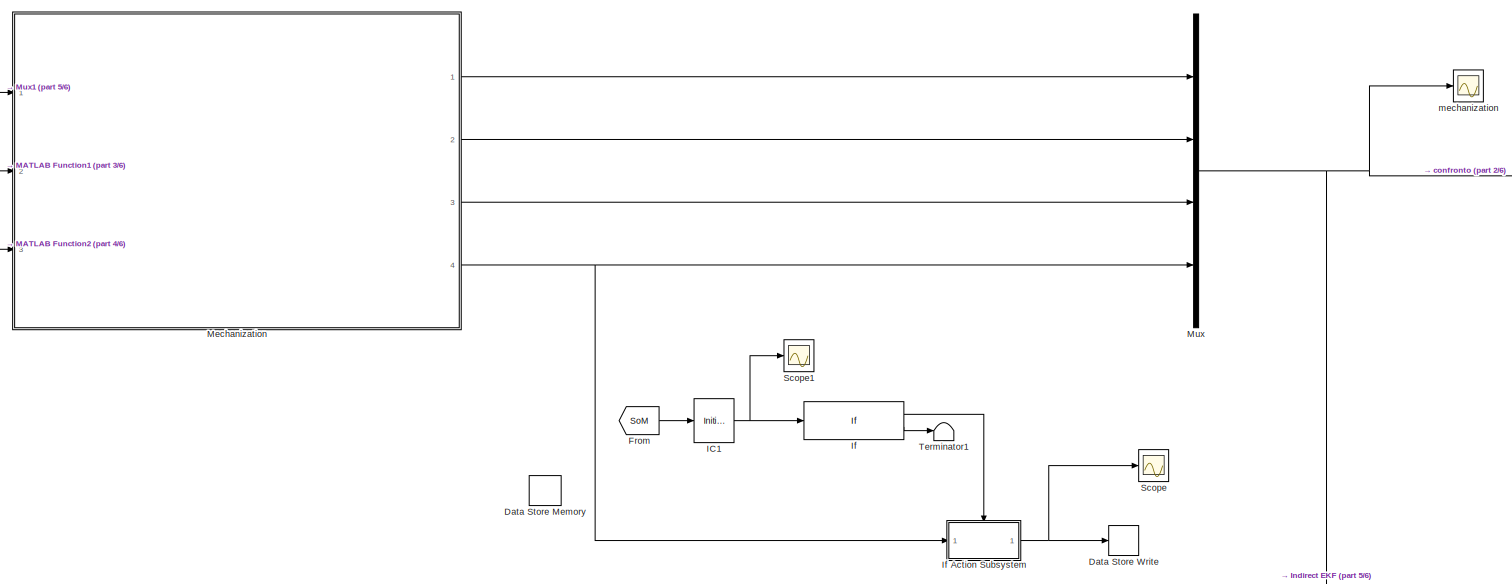
[diagram: root canvas - part 1/6, top right region]
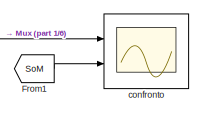
[diagram: root canvas - part 2/6, top right region]
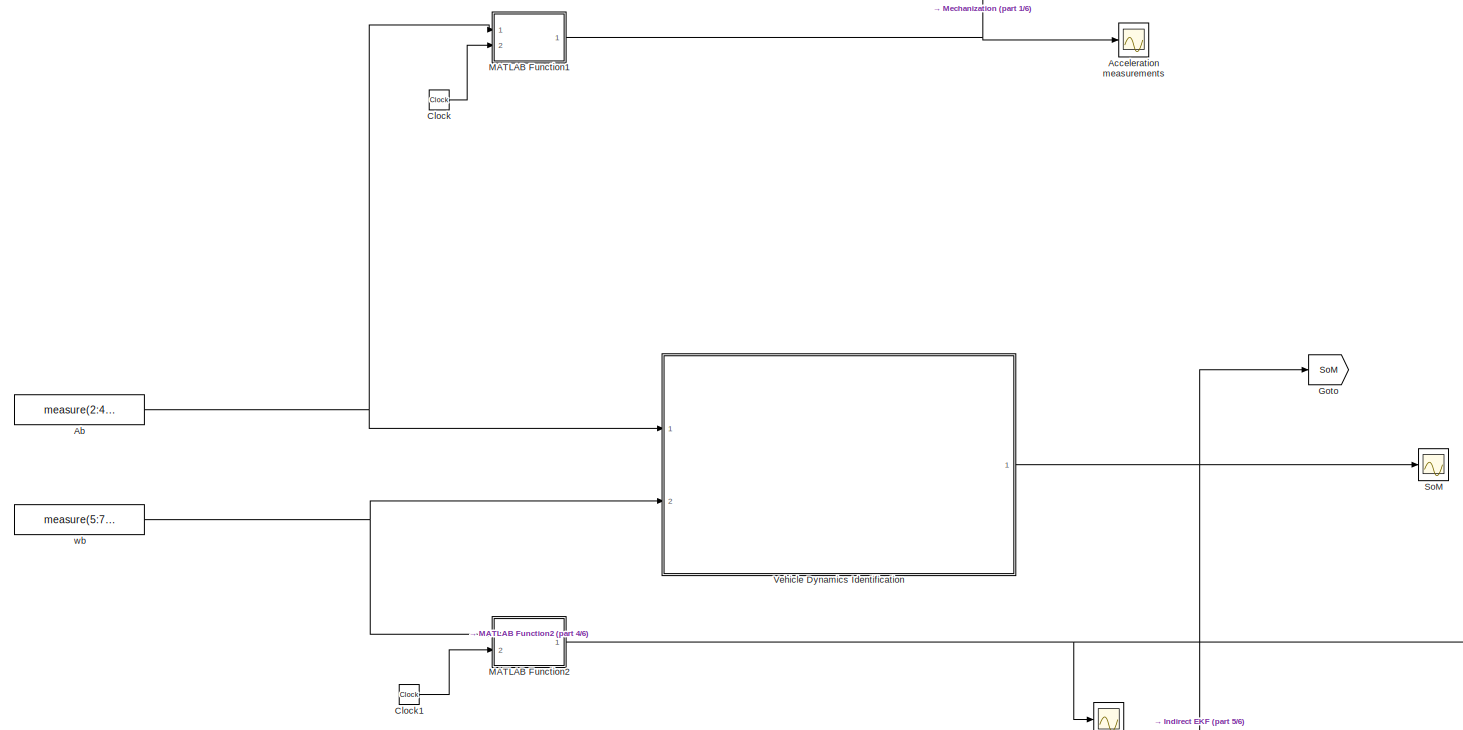
[diagram: root canvas - part 3/6, middle left region]
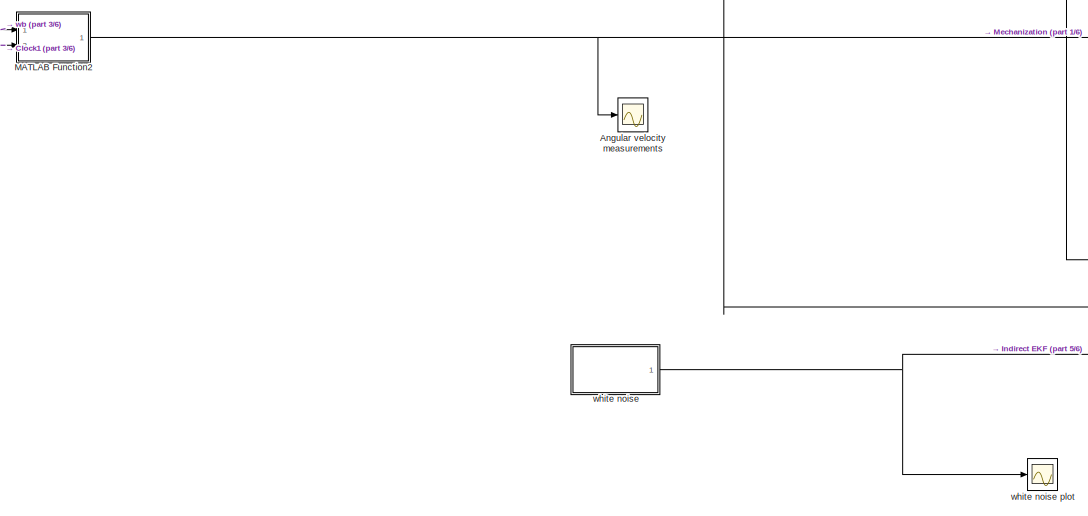
[diagram: root canvas - part 4/6, bottom left region]
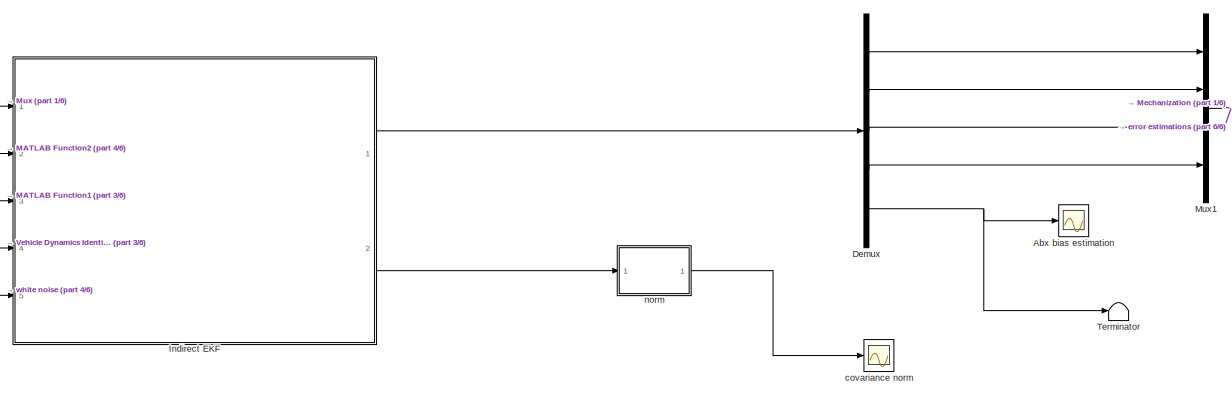
[diagram: root canvas - part 5/6, bottom right region]
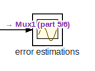
[diagram: root canvas - part 6/6, bottom right region]
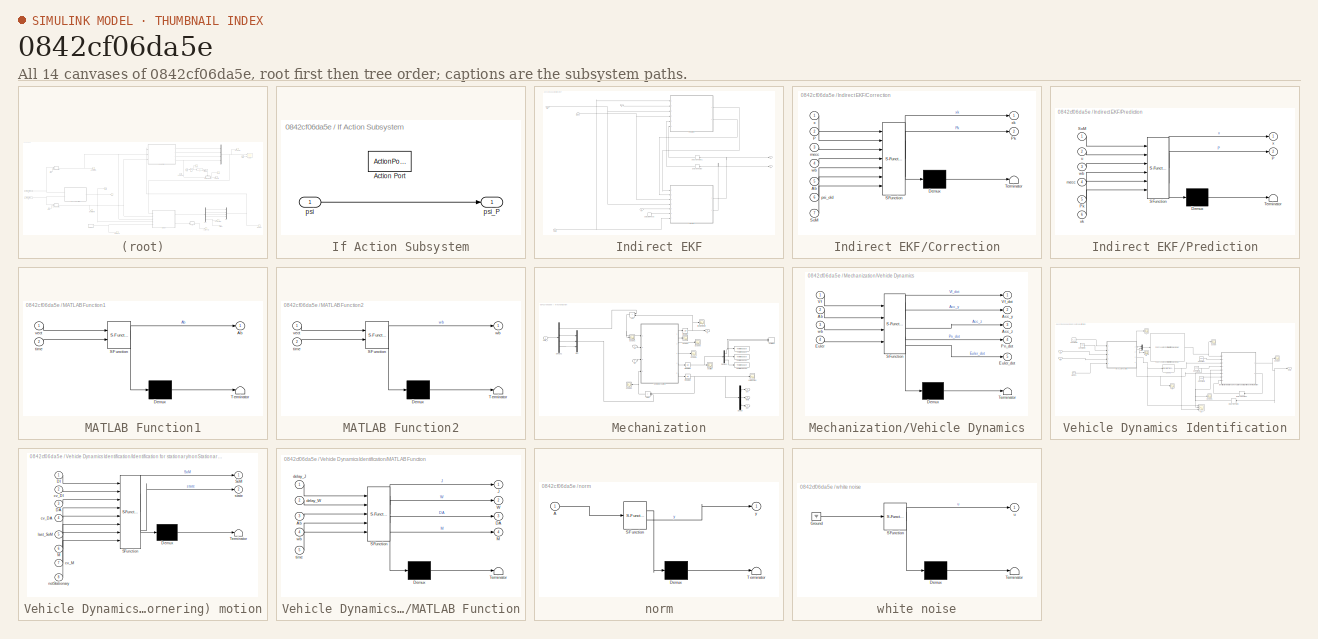
[diagram: thumbnail index - all 14 canvases of the model, root first then tree order]
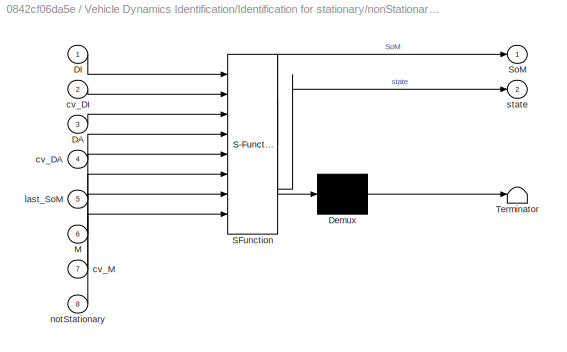
MODEL slx_0842cf06da5e
KIND model
CONFIG AbsTol = auto
CONFIG EnableMultiTasking = off
CONFIG FixedStep = 1e-2
CONFIG MaxStep = auto
CONFIG MinStep = auto
CONFIG RelTol = 1e-3
CONFIG SampleTimeConstraint = Unconstrained
CONFIG SolverName = ode4
CONFIG StartTime = 0.0
CONFIG StopTime = 200
BLOCK [Constant] Ab
  Value = measure(2:4,:)
BLOCK [Scope] Abx bias estimation
  Floating = off
  NumInputPorts = 1
  Ports = [1]
  ScopeSpecificationString = Simulink.scopes.TimeScopeBlockCfg('CurrentConfiguration', extmgr.ConfigurationSet(extmgr.Configuration('Core','General UI',true),extmgr.Configuration('Core','Source UI',true),extmgr.Configuration('Sources','WiredSimulink',true,'DataLoggingVariableName','ScopeData7'),extmgr.Configuration('Visuals','Time Domain',true,'SerializedDisplays',{struct('MinYLimReal','-1.00000','MaxYLimReal','1.00000','YLab...<+1366ch>
BLOCK [Scope] Acceleration measurements
  Floating = off
  NumInputPorts = 1
  Ports = [1]
  ScopeSpecificationString = Simulink.scopes.TimeScopeBlockCfg('CurrentConfiguration', extmgr.ConfigurationSet(extmgr.Configuration('Core','General UI',true),extmgr.Configuration('Core','Source UI',true),extmgr.Configuration('Sources','WiredSimulink',true,'DataLoggingVariableName','ScopeData9'),extmgr.Configuration('Visuals','Time Domain',true,'SerializedDisplays',{struct('MinYLimReal','-12.26886','MaxYLimReal','7.2905','YLab...<+1474ch>
BLOCK [Scope] Angular velocity measurements
  Floating = off
  NumInputPorts = 1
  Ports = [1]
  ScopeSpecificationString = Simulink.scopes.TimeScopeBlockCfg('CurrentConfiguration', extmgr.ConfigurationSet(extmgr.Configuration('Core','General UI',true),extmgr.Configuration('Core','Source UI',true),extmgr.Configuration('Sources','WiredSimulink',true,'DataLoggingVariableName','ScopeData10'),extmgr.Configuration('Visuals','Time Domain',true,'SerializedDisplays',{struct('MinYLimReal','-0.61104','MaxYLimReal','0.61576','YLa...<+1445ch>
BLOCK [Clock] Clock
BLOCK [Clock] Clock1
BLOCK [DataStoreMemory] Data Store Memory
  DataStoreName = psi_P
  InitialValue = pi/2
  ReadBeforeWriteMsg = warning
  ShowAdditionalParam = off
  WriteAfterReadMsg = warning
  WriteAfterWriteMsg = warning
BLOCK [DataStoreWrite] Data Store Write
  DataStoreName = psi_P
  IndexOptions = Index vector (dialog)
  Indices = 1
  OutputSizes = 1
  Ports = [1]
BLOCK [Demux] Demux
  Outputs = 5
  Ports = [1, 5]
BLOCK [From] From
  GotoTag = SoM
BLOCK [From] From1
  GotoTag = SoM
BLOCK [Goto] Goto
  GotoTag = SoM
BLOCK [InitialCondition] IC1
BLOCK [If] If
  IfExpression = u1
  Ports = [1, 2]
BLOCK [SubSystem] If Action Subsystem
  Ports = [1, 1, 0, 0, 0, 0, 0, 1]
  RequestExecContextInheritance = off
  TreatAsAtomicUnit = on
BLOCK [ActionPort] If Action Subsystem/Action Port
  ActionPortLabel = if(u1)
BLOCK [Inport] If Action Subsystem/psi
BLOCK [Outport] If Action Subsystem/psi_P
BLOCK [SubSystem] Indirect EKF
  Ports = [5, 2]
  RequestExecContextInheritance = off
BLOCK [Inport] Indirect EKF/Ab
  Port = 3
BLOCK [SubSystem] Indirect EKF/Correction
  ErrorFcn = Stateflow.Translate.translate
  PermitHierarchicalResolution = ExplicitOnly
  Ports = [7, 2]
  RequestExecContextInheritance = off
  SFBlockType = MATLAB Function
  TreatAsAtomicUnit = on
BLOCK [Demux] Indirect EKF/Correction/ Demux 
  Outputs = 1
  Ports = [1, 1]
BLOCK [S-Function] Indirect EKF/Correction/ SFunction 
  EnableBusSupport = on
  FunctionName = sf_sfun
  PortCounts = [7 3]
  Ports = [7, 3]
  SFcnIsStateOwnerBlock = off
  SFunctionDeploymentMode = off
  Tag = Stateflow S-Function 7
BLOCK [Terminator] Indirect EKF/Correction/ Terminator 
BLOCK [Inport] Indirect EKF/Correction/Ab
  Port = 5
BLOCK [Inport] Indirect EKF/Correction/P
  Port = 2
BLOCK [Outport] Indirect EKF/Correction/Pk
  Port = 2
BLOCK [Inport] Indirect EKF/Correction/SoM
  Port = 7
BLOCK [Inport] Indirect EKF/Correction/mecc
  Port = 3
BLOCK [Inport] Indirect EKF/Correction/psi_old
  Port = 6
BLOCK [Inport] Indirect EKF/Correction/wb
  Port = 4
BLOCK [Inport] Indirect EKF/Correction/x
BLOCK [Outport] Indirect EKF/Correction/xk
BLOCK [DataStoreRead] Indirect EKF/Data Store Read
  DataStoreName = psi_P
  IndexOptions = Index vector (dialog)
  Indices = 1
  OutputSizes = 1
  Ports = [0, 1]
BLOCK [Delay] Indirect EKF/Delay One Step
  DelayLength = 1
  InitialCondition = eye(5)
  InputPortMap = u0
  NameLocation = top
  Ports = [1, 1]
BLOCK [Delay] Indirect EKF/Delay One Step1
  DelayLength = 1
  InitialCondition = [0 0 0 0 0]'
  InputPortMap = u0
  NameLocation = top
  Ports = [1, 1]
BLOCK [Outport] Indirect EKF/P
  Port = 2
BLOCK [SubSystem] Indirect EKF/Prediction
  ErrorFcn = Stateflow.Translate.translate
  PermitHierarchicalResolution = ExplicitOnly
  Ports = [6, 2]
  RequestExecContextInheritance = off
  SFBlockType = MATLAB Function
  TreatAsAtomicUnit = on
BLOCK [Demux] Indirect EKF/Prediction/ Demux 
  Outputs = 1
  Ports = [1, 1]
BLOCK [S-Function] Indirect EKF/Prediction/ SFunction 
  EnableBusSupport = on
  FunctionName = sf_sfun
  PortCounts = [6 3]
  Ports = [6, 3]
  SFcnIsStateOwnerBlock = off
  SFunctionDeploymentMode = off
  Tag = Stateflow S-Function 6
BLOCK [Terminator] Indirect EKF/Prediction/ Terminator 
BLOCK [Outport] Indirect EKF/Prediction/P
  Port = 2
BLOCK [Inport] Indirect EKF/Prediction/Pk
  Port = 5
BLOCK [Inport] Indirect EKF/Prediction/SoM
BLOCK [Inport] Indirect EKF/Prediction/mecc
  Port = 4
BLOCK [Inport] Indirect EKF/Prediction/u
  Port = 2
BLOCK [Inport] Indirect EKF/Prediction/wb
  Port = 3
BLOCK [Outport] Indirect EKF/Prediction/x
BLOCK [Inport] Indirect EKF/Prediction/xk
  Port = 6
BLOCK [Inport] Indirect EKF/SoM
  Port = 4
BLOCK [Inport] Indirect EKF/mecc
BLOCK [Inport] Indirect EKF/u
  Port = 5
BLOCK [Inport] Indirect EKF/wb
  Port = 2
BLOCK [Outport] Indirect EKF/x
BLOCK [SubSystem] MATLAB Function1
  ErrorFcn = Stateflow.Translate.translate
  PermitHierarchicalResolution = ExplicitOnly
  Ports = [2, 1]
  RequestExecContextInheritance = off
  SFBlockType = MATLAB Function
  TreatAsAtomicUnit = on
BLOCK [Demux] MATLAB Function1/ Demux 
  Outputs = 1
  Ports = [1, 1]
BLOCK [S-Function] MATLAB Function1/ SFunction 
  EnableBusSupport = on
  FunctionName = sf_sfun
  PortCounts = [2 2]
  Ports = [2, 2]
  SFcnIsStateOwnerBlock = off
  SFunctionDeploymentMode = off
  Tag = Stateflow S-Function 11
BLOCK [Terminator] MATLAB Function1/ Terminator 
BLOCK [Outport] MATLAB Function1/Ab
BLOCK [Inport] MATLAB Function1/time
  Port = 2
BLOCK [Inport] MATLAB Function1/vect
BLOCK [SubSystem] MATLAB Function2
  ErrorFcn = Stateflow.Translate.translate
  PermitHierarchicalResolution = ExplicitOnly
  Ports = [2, 1]
  RequestExecContextInheritance = off
  SFBlockType = MATLAB Function
  TreatAsAtomicUnit = on
BLOCK [Demux] MATLAB Function2/ Demux 
  Outputs = 1
  Ports = [1, 1]
BLOCK [S-Function] MATLAB Function2/ SFunction 
  EnableBusSupport = on
  FunctionName = sf_sfun
  PortCounts = [2 2]
  Ports = [2, 2]
  SFcnIsStateOwnerBlock = off
  SFunctionDeploymentMode = off
  Tag = Stateflow S-Function 12
BLOCK [Terminator] MATLAB Function2/ Terminator 
BLOCK [Inport] MATLAB Function2/time
  Port = 2
BLOCK [Inport] MATLAB Function2/vect
BLOCK [Outport] MATLAB Function2/wb
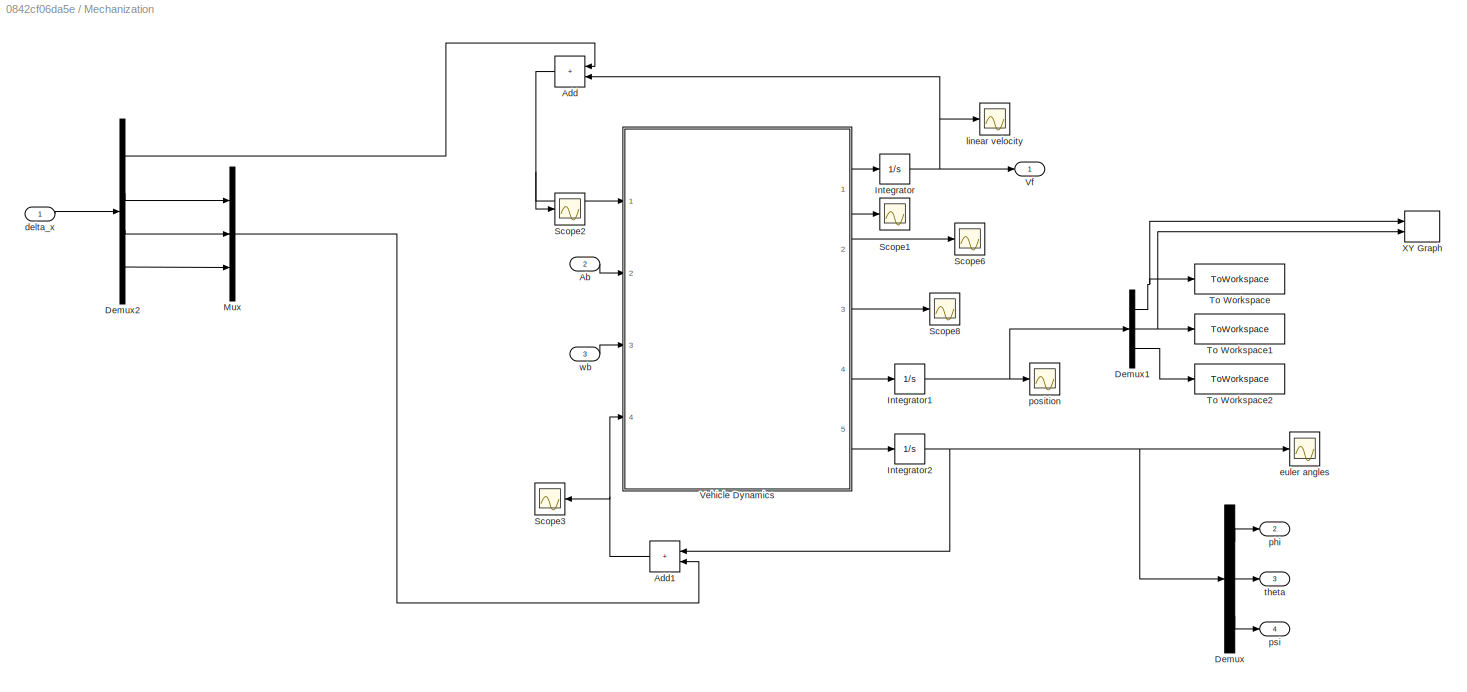
BLOCK [SubSystem] Mechanization
  Ports = [3, 4]
  RequestExecContextInheritance = off
BLOCK [Inport] Mechanization/Ab
  Port = 2
BLOCK [Sum] Mechanization/Add
  IconShape = rectangular
  NameLocation = top
  Ports = [2, 1]
BLOCK [Sum] Mechanization/Add1
  IconShape = rectangular
  NameLocation = top
  Ports = [2, 1]
BLOCK [Demux] Mechanization/Demux
  Outputs = 3
  Ports = [1, 3]
BLOCK [Demux] Mechanization/Demux1
  Outputs = 3
  Ports = [1, 3]
BLOCK [Demux] Mechanization/Demux2
  Ports = [1, 4]
BLOCK [Integrator] Mechanization/Integrator
  Ports = [1, 1]
BLOCK [Integrator] Mechanization/Integrator1
  InitialCondition = [0 0 0]'
  Ports = [1, 1]
BLOCK [Integrator] Mechanization/Integrator2
  InitialCondition = [0 0 pi/2]'
  Ports = [1, 1]
BLOCK [Mux] Mechanization/Mux
  DisplayOption = bar
  Inputs = 3
  Ports = [3, 1]
BLOCK [Scope] Mechanization/Scope1
  Floating = off
  NumInputPorts = 1
  Ports = [1]
  ScopeSpecificationString = Simulink.scopes.TimeScopeBlockCfg('CurrentConfiguration', extmgr.ConfigurationSet(extmgr.Configuration('Core','General UI',true),extmgr.Configuration('Core','Source UI',true),extmgr.Configuration('Sources','WiredSimulink',true,'DataLoggingVariableName','ScopeData1'),extmgr.Configuration('Visuals','Time Domain',true,'SerializedDisplays',{struct('MinYLimReal','-6.30754','MaxYLimReal','11.3619','YLab...<+1442ch>
BLOCK [Scope] Mechanization/Scope2
  Floating = off
  NumInputPorts = 1
  Ports = [1]
  ScopeSpecificationString = Simulink.scopes.TimeScopeBlockCfg('CurrentConfiguration', extmgr.ConfigurationSet(extmgr.Configuration('Core','General UI',true),extmgr.Configuration('Core','Source UI',true),extmgr.Configuration('Sources','WiredSimulink',true,'DataLoggingVariableName','ScopeData1'),extmgr.Configuration('Visuals','Time Domain',true,'SerializedDisplays',{struct('MinYLimReal','-24.69047','MaxYLimReal','20.43302','YL...<+1399ch>
BLOCK [Scope] Mechanization/Scope3
  Floating = off
  NumInputPorts = 1
  Ports = [1]
  ScopeSpecificationString = Simulink.scopes.TimeScopeBlockCfg('CurrentConfiguration', extmgr.ConfigurationSet(extmgr.Configuration('Core','General UI',true),extmgr.Configuration('Core','Source UI',true),extmgr.Configuration('Sources','WiredSimulink',true,'DataLoggingVariableName','ScopeData2'),extmgr.Configuration('Visuals','Time Domain',true,'SerializedDisplays',{struct('MinYLimReal','-0.34071','MaxYLimReal','1.78392','YLab...<+1383ch>
BLOCK [Scope] Mechanization/Scope6
  Floating = off
  NumInputPorts = 1
  Ports = [1]
  ScopeSpecificationString = Simulink.scopes.TimeScopeBlockCfg('CurrentConfiguration', extmgr.ConfigurationSet(extmgr.Configuration('Core','General UI',true),extmgr.Configuration('Core','Source UI',true),extmgr.Configuration('Sources','WiredSimulink',true,'DataLoggingVariableName','ScopeData3'),extmgr.Configuration('Visuals','Time Domain',true,'SerializedDisplays',{struct('MinYLimReal','-4.60764','MaxYLimReal','2.53127','YLab...<+1381ch>
BLOCK [Scope] Mechanization/Scope8
  Floating = off
  NumInputPorts = 1
  Ports = [1]
  ScopeSpecificationString = Simulink.scopes.TimeScopeBlockCfg('CurrentConfiguration', extmgr.ConfigurationSet(extmgr.Configuration('Core','General UI',true),extmgr.Configuration('Core','Source UI',true),extmgr.Configuration('Sources','WiredSimulink',true,'DataLoggingVariableName','ScopeData4'),extmgr.Configuration('Visuals','Time Domain',true,'SerializedDisplays',{struct('MinYLimReal','0.18308','MaxYLimReal','0.74153','YLabe...<+1379ch>
BLOCK [ToWorkspace] Mechanization/To Workspace
  FixptAsFi = on
  MaxDataPoints = inf
  Ports = [1]
  SampleTime = -1
  SaveFormat = Structure
  VariableName = x
BLOCK [ToWorkspace] Mechanization/To Workspace1
  FixptAsFi = on
  MaxDataPoints = inf
  Ports = [1]
  SampleTime = -1
  SaveFormat = Structure
  VariableName = y
BLOCK [ToWorkspace] Mechanization/To Workspace2
  FixptAsFi = on
  MaxDataPoints = inf
  Ports = [1]
  SampleTime = -1
  SaveFormat = Structure
  VariableName = z
BLOCK [SubSystem] Mechanization/Vehicle Dynamics
  ErrorFcn = Stateflow.Translate.translate
  PermitHierarchicalResolution = ExplicitOnly
  Ports = [4, 5]
  RequestExecContextInheritance = off
  SFBlockType = MATLAB Function
  TreatAsAtomicUnit = on
BLOCK [Demux] Mechanization/Vehicle Dynamics/ Demux 
  Outputs = 1
  Ports = [1, 1]
BLOCK [S-Function] Mechanization/Vehicle Dynamics/ SFunction 
  EnableBusSupport = on
  FunctionName = sf_sfun
  PortCounts = [4 6]
  Ports = [4, 6]
  SFcnIsStateOwnerBlock = off
  SFunctionDeploymentMode = off
  Tag = Stateflow S-Function 14
BLOCK [Terminator] Mechanization/Vehicle Dynamics/ Terminator 
BLOCK [Inport] Mechanization/Vehicle Dynamics/Ab
  Port = 2
BLOCK [Outport] Mechanization/Vehicle Dynamics/Acc_y
  Port = 2
BLOCK [Outport] Mechanization/Vehicle Dynamics/Acc_z
  Port = 3
BLOCK [Inport] Mechanization/Vehicle Dynamics/Euler
  Port = 4
BLOCK [Outport] Mechanization/Vehicle Dynamics/Euler_dot
  Port = 5
BLOCK [Outport] Mechanization/Vehicle Dynamics/Pn_dot
  Port = 4
BLOCK [Inport] Mechanization/Vehicle Dynamics/Vf
BLOCK [Outport] Mechanization/Vehicle Dynamics/Vf_dot
BLOCK [Inport] Mechanization/Vehicle Dynamics/wb
  Port = 3
BLOCK [Outport] Mechanization/Vf
BLOCK [Record] Mechanization/XY Graph
  CompatibilityTag = XY
  FileSettingsInternal = {"entries":[{"content":{"excelSettings":{"content":{},"type":"Streamout.ExcelSettings"}},"type":"Streamout.FileSettingStorage","uuid":"3c158775-b6e3-428c-9659-72c20ea76644"}],"packageUris":["http://schema.mathworks.com/mf0/streamout_blocks/R2020a"],"version":"1.0"}
  Layout = [1 1]
  Ports = [2]
  SignalsInternal = {"entries":[{"content":{"signals":[{"content":{"blockPath":["Fuzzy_and_EKF_tightly/Mechanization/XY Graph"],"channel":[],"dimensions":[1,1],"domain":"Fuzzy_and_EKF_tightly/Mechanization/XY Graph","lineColor":"#edb120","plots":[],"port":1,"sid":[""],"signalID":16325,"signalName":"Demux1:1"},"type":"RecordBlkView.Signal","uuid":"bfe6afe1-6902-4355-a286-55c02540e738"},{"content":{"blockPath":["Fuzzy_...<+477ch>
  VisualizationBindings = {"xyplotplugin":{"info":[{"series":[],"subplotID":1}]}}
BLOCK [Inport] Mechanization/delta_x
BLOCK [Scope] Mechanization/euler angles
  Floating = off
  NumInputPorts = 1
  Ports = [1]
  ScopeSpecificationString = Simulink.scopes.TimeScopeBlockCfg('CurrentConfiguration', extmgr.ConfigurationSet(extmgr.Configuration('Core','General UI',true),extmgr.Configuration('Core','Source UI',true),extmgr.Configuration('Sources','WiredSimulink',true,'DataLoggingVariableName','ScopeData5'),extmgr.Configuration('Visuals','Time Domain',true,'SerializedDisplays',{struct('MinYLimReal','-0.29938','MaxYLimReal','1.77991','YLab...<+1458ch>
BLOCK [Scope] Mechanization/linear velocity
  Floating = off
  NumInputPorts = 1
  Ports = [1]
  ScopeSpecificationString = Simulink.scopes.TimeScopeBlockCfg('CurrentConfiguration', extmgr.ConfigurationSet(extmgr.Configuration('Core','General UI',true),extmgr.Configuration('Core','Source UI',true),extmgr.Configuration('Sources','WiredSimulink',true,'DataLoggingVariableName','ScopeData1'),extmgr.Configuration('Visuals','Time Domain',true,'SerializedDisplays',{struct('MinYLimReal','-43.04124','MaxYLimReal','13.09449','YL...<+1451ch>
BLOCK [Outport] Mechanization/phi
  Port = 2
BLOCK [Scope] Mechanization/position
  Floating = off
  NumInputPorts = 1
  Ports = [1]
  ScopeSpecificationString = Simulink.scopes.TimeScopeBlockCfg('CurrentConfiguration', extmgr.ConfigurationSet(extmgr.Configuration('Core','General UI',true),extmgr.Configuration('Core','Source UI',true),extmgr.Configuration('Sources','WiredSimulink',true,'DataLoggingVariableName','ScopeData2'),extmgr.Configuration('Visuals','Time Domain',true,'SerializedDisplays',{struct('MinYLimReal','-78.58201','MaxYLimReal','30.11731','YL...<+1466ch>
BLOCK [Outport] Mechanization/psi
  Port = 4
BLOCK [Outport] Mechanization/theta
  Port = 3
BLOCK [Inport] Mechanization/wb
  Port = 3
BLOCK [Mux] Mux
  DisplayOption = bar
  Ports = [4, 1]
BLOCK [Mux] Mux1
  DisplayOption = bar
  Ports = [4, 1]
BLOCK [Scope] Scope
  Floating = off
  NumInputPorts = 1
  Ports = [1]
  ScopeSpecificationString = Simulink.scopes.TimeScopeBlockCfg('CurrentConfiguration', extmgr.ConfigurationSet(extmgr.Configuration('Core','General UI',true),extmgr.Configuration('Core','Source UI',true),extmgr.Configuration('Sources','WiredSimulink',true,'DataLoggingVariableName','ScopeData2'),extmgr.Configuration('Visuals','Time Domain',true,'SerializedDisplays',{struct('MinYLimReal','-0.19648','MaxYLimReal','1.76828','YLab...<+1438ch>
BLOCK [Scope] Scope1
  Floating = off
  NumInputPorts = 1
  Ports = [1]
  ScopeSpecificationString = Simulink.scopes.TimeScopeBlockCfg('CurrentConfiguration', extmgr.ConfigurationSet(extmgr.Configuration('Core','General UI',true),extmgr.Configuration('Core','Source UI',true),extmgr.Configuration('Sources','WiredSimulink',true,'DataLoggingVariableName','ScopeData3'),extmgr.Configuration('Visuals','Time Domain',true,'SerializedDisplays',{struct('MinYLimReal','-0.25','MaxYLimReal','2.25','YLabelReal...<+1366ch>
BLOCK [Scope] SoM
  Floating = off
  NumInputPorts = 1
  Ports = [1]
  ScopeSpecificationString = Simulink.scopes.TimeScopeBlockCfg('CurrentConfiguration', extmgr.ConfigurationSet(extmgr.Configuration('Core','General UI',true),extmgr.Configuration('Core','Source UI',true),extmgr.Configuration('Sources','WiredSimulink',true),extmgr.Configuration('Visuals','Time Domain',true,'SerializedDisplays',{struct('MinYLimReal','-0.25','MaxYLimReal','2.25','YLabelReal','','MinYLimMag','0.00000','MaxYLimMag...<+1395ch>
BLOCK [Terminator] Terminator
BLOCK [Terminator] Terminator1
BLOCK [SubSystem] Vehicle Dynamics Identification
  Ports = [2, 1]
  RequestExecContextInheritance = off
BLOCK [DiscreteTransferFcn] Vehicle Dynamics Identification/250hz
  Denominator = [1 -0.8546]
  InputPortMap = u0
  Numerator = [0.1454]
  Ports = [1, 1]
BLOCK [Inport] Vehicle Dynamics Identification/Ab
BLOCK [Clock] Vehicle Dynamics Identification/Clock1
BLOCK [Constant] Vehicle Dynamics Identification/Constant
  Value = 0.50
BLOCK [Constant] Vehicle Dynamics Identification/Constant1
  Value = 10.3
BLOCK [Constant] Vehicle Dynamics Identification/Constant2
  Value = 0.28
BLOCK [Constant] Vehicle Dynamics Identification/Constant3
  Value = n_J
BLOCK [Constant] Vehicle Dynamics Identification/Constant4
  Value = n_W
BLOCK [Scope] Vehicle Dynamics Identification/DA
  Floating = off
  NumInputPorts = 3
  Ports = [3]
  ScopeSpecificationString = Simulink.scopes.TimeScopeBlockCfg('CurrentConfiguration', extmgr.ConfigurationSet(extmgr.Configuration('Core','General UI',true),extmgr.Configuration('Core','Source UI',true),extmgr.Configuration('Sources','WiredSimulink',true,'DataLoggingVariableName','ScopeData4'),extmgr.Configuration('Visuals','Time Domain',true,'SerializedDisplays',{struct('MinYLimReal','9.71517','MaxYLimReal','15.25418','YLab...<+1563ch>
BLOCK [Delay] Vehicle Dynamics Identification/Delay One Step
  DelayLength = 1
  InitialCondition = 0
  InputPortMap = u0
  NameLocation = top
  Ports = [1, 1]
BLOCK [Delay] Vehicle Dynamics Identification/Delay One Step1
  DelayLength = 1
  InitialCondition = 0
  InputPortMap = u0
  NameLocation = top
  Ports = [1, 1]
BLOCK [Reference] Vehicle Dynamics Identification/Fuzzy Logic Controller with Ruleviewer  REF=fuzblock/Fuzzy Logic   (lib defined in mdl_858b3b3e7478)
Controller 
with Ruleviewer
  Ports = [1, 1]
  SourceBlock = fuzblock/Fuzzy Logic \nController \nwith Ruleviewer
  SourceProductBaseCode = FL
  SourceType = Fuzzy Inference System
BLOCK [SubSystem] Vehicle Dynamics Identification/Identification for stationary//nonStationary(straight-line//cornering) motion
  ErrorFcn = Stateflow.Translate.translate
  PermitHierarchicalResolution = ExplicitOnly
  Ports = [8, 2]
  RequestExecContextInheritance = off
  SFBlockType = MATLAB Function
  TreatAsAtomicUnit = on
BLOCK [Demux] Vehicle Dynamics Identification/Identification for stationary//nonStationary(straight-line//cornering) motion/ Demux 
  Outputs = 1
  Ports = [1, 1]
BLOCK [S-Function] Vehicle Dynamics Identification/Identification for stationary//nonStationary(straight-line//cornering) motion/ SFunction 
  EnableBusSupport = on
  FunctionName = sf_sfun
  PortCounts = [8 3]
  Ports = [8, 3]
  SFcnIsStateOwnerBlock = off
  SFunctionDeploymentMode = off
  Tag = Stateflow S-Function 3
BLOCK [Terminator] Vehicle Dynamics Identification/Identification for stationary//nonStationary(straight-line//cornering) motion/ Terminator 
BLOCK [Inport] Vehicle Dynamics Identification/Identification for stationary//nonStationary(straight-line//cornering) motion/DA
  Port = 3
BLOCK [Inport] Vehicle Dynamics Identification/Identification for stationary//nonStationary(straight-line//cornering) motion/DI
BLOCK [Inport] Vehicle Dynamics Identification/Identification for stationary//nonStationary(straight-line//cornering) motion/M
  Port = 6
BLOCK [Outport] Vehicle Dynamics Identification/Identification for stationary//nonStationary(straight-line//cornering) motion/SoM
BLOCK [Inport] Vehicle Dynamics Identification/Identification for stationary//nonStationary(straight-line//cornering) motion/cv_DA
  Port = 4
BLOCK [Inport] Vehicle Dynamics Identification/Identification for stationary//nonStationary(straight-line//cornering) motion/cv_DI
  Port = 2
BLOCK [Inport] Vehicle Dynamics Identification/Identification for stationary//nonStationary(straight-line//cornering) motion/cv_M
  Port = 7
BLOCK [Inport] Vehicle Dynamics Identification/Identification for stationary//nonStationary(straight-line//cornering) motion/last_SoM
  Port = 5
BLOCK [Inport] Vehicle Dynamics Identification/Identification for stationary//nonStationary(straight-line//cornering) motion/notStationary
  Port = 8
BLOCK [Outport] Vehicle Dynamics Identification/Identification for stationary//nonStationary(straight-line//cornering) motion/state
  Port = 2
BLOCK [Scope] Vehicle Dynamics Identification/J
  Floating = off
  NumInputPorts = 1
  Ports = [1]
  ScopeSpecificationString = Simulink.scopes.TimeScopeBlockCfg('CurrentConfiguration', extmgr.ConfigurationSet(extmgr.Configuration('Core','General UI',true),extmgr.Configuration('Core','Source UI',true),extmgr.Configuration('Sources','WiredSimulink',true,'DataLoggingVariableName','ScopeData2'),extmgr.Configuration('Visuals','Time Domain',true,'SerializedDisplays',{struct('MinYLimReal','-0.26005','MaxYLimReal','2.34048','YLab...<+1405ch>
BLOCK [Scope] Vehicle Dynamics Identification/M
  Floating = off
  NumInputPorts = 1
  Ports = [1]
  ScopeSpecificationString = Simulink.scopes.TimeScopeBlockCfg('CurrentConfiguration', extmgr.ConfigurationSet(extmgr.Configuration('Core','General UI',true),extmgr.Configuration('Core','Source UI',true),extmgr.Configuration('Sources','WiredSimulink',true,'DataLoggingVariableName','ScopeData5'),extmgr.Configuration('Visuals','Time Domain',true,'SerializedDisplays',{struct('MinYLimReal','-0.05782','MaxYLimReal','0.52039','YLab...<+1449ch>
BLOCK [SubSystem] Vehicle Dynamics Identification/MATLAB Function
  ErrorFcn = Stateflow.Translate.translate
  PermitHierarchicalResolution = ExplicitOnly
  Ports = [5, 4]
  RequestExecContextInheritance = off
  SFBlockType = MATLAB Function
  TreatAsAtomicUnit = on
BLOCK [Demux] Vehicle Dynamics Identification/MATLAB Function/ Demux 
  Outputs = 1
  Ports = [1, 1]
BLOCK [S-Function] Vehicle Dynamics Identification/MATLAB Function/ SFunction 
  EnableBusSupport = on
  FunctionName = sf_sfun
  PortCounts = [5 5]
  Ports = [5, 5]
  SFcnIsStateOwnerBlock = off
  SFunctionDeploymentMode = off
  Tag = Stateflow S-Function 4
BLOCK [Terminator] Vehicle Dynamics Identification/MATLAB Function/ Terminator 
BLOCK [Inport] Vehicle Dynamics Identification/MATLAB Function/Ab
  Port = 3
BLOCK [Outport] Vehicle Dynamics Identification/MATLAB Function/DA
  Port = 3
BLOCK [Outport] Vehicle Dynamics Identification/MATLAB Function/J
BLOCK [Outport] Vehicle Dynamics Identification/MATLAB Function/M
  Port = 4
BLOCK [Outport] Vehicle Dynamics Identification/MATLAB Function/W
  Port = 2
BLOCK [Inport] Vehicle Dynamics Identification/MATLAB Function/delay_J
BLOCK [Inport] Vehicle Dynamics Identification/MATLAB Function/delay_W
  Port = 2
BLOCK [Inport] Vehicle Dynamics Identification/MATLAB Function/time
  Port = 5
BLOCK [Inport] Vehicle Dynamics Identification/MATLAB Function/wb
  Port = 4
BLOCK [Mux] Vehicle Dynamics Identification/Mux
  DisplayOption = bar
  Inputs = 2
  Ports = [2, 1]
BLOCK [Scope] Vehicle Dynamics Identification/Scope
  Floating = off
  NumInputPorts = 1
  Ports = [1]
  ScopeSpecificationString = Simulink.scopes.TimeScopeBlockCfg('CurrentConfiguration', extmgr.ConfigurationSet(extmgr.Configuration('Core','General UI',true),extmgr.Configuration('Core','Source UI',true),extmgr.Configuration('Sources','WiredSimulink',true,'DataLoggingVariableName','ScopeData1'),extmgr.Configuration('Visuals','Time Domain',true,'SerializedDisplays',{struct('MinYLimReal','0.08051','MaxYLimReal','0.90873','YLabe...<+1455ch>
BLOCK [Scope] Vehicle Dynamics Identification/Scope5
  Floating = off
  NumInputPorts = 1
  Ports = [1]
  ScopeSpecificationString = Simulink.scopes.TimeScopeBlockCfg('CurrentConfiguration', extmgr.ConfigurationSet(extmgr.Configuration('Core','General UI',true),extmgr.Configuration('Core','Source UI',true),extmgr.Configuration('Sources','WiredSimulink',true,'DataLoggingVariableName','ScopeData1'),extmgr.Configuration('Visuals','Time Domain',true,'SerializedDisplays',{struct('MinYLimReal','-0.25','MaxYLimReal','2.25','YLabelReal...<+1399ch>
BLOCK [Scope] Vehicle Dynamics Identification/Scope7
  Floating = off
  NumInputPorts = 1
  Ports = [1]
  ScopeSpecificationString = Simulink.scopes.TimeScopeBlockCfg('CurrentConfiguration', extmgr.ConfigurationSet(extmgr.Configuration('Core','General UI',true),extmgr.Configuration('Core','Source UI',true),extmgr.Configuration('Sources','WiredSimulink',true,'DataLoggingVariableName','ScopeData3'),extmgr.Configuration('Visuals','Time Domain',true,'SerializedDisplays',{struct('MinYLimReal','-0.25','MaxYLimReal','2.25','YLabelReal...<+1528ch>
BLOCK [Outport] Vehicle Dynamics Identification/SoM
BLOCK [Scope] Vehicle Dynamics Identification/W
  Floating = off
  NumInputPorts = 1
  Ports = [1]
  ScopeSpecificationString = Simulink.scopes.TimeScopeBlockCfg('CurrentConfiguration', extmgr.ConfigurationSet(extmgr.Configuration('Core','General UI',true),extmgr.Configuration('Core','Source UI',true),extmgr.Configuration('Sources','WiredSimulink',true,'DataLoggingVariableName','ScopeData3'),extmgr.Configuration('Visuals','Time Domain',true,'SerializedDisplays',{struct('MinYLimReal','-0.04854','MaxYLimReal','0.43688','YLab...<+1404ch>
BLOCK [Inport] Vehicle Dynamics Identification/wb
  Port = 2
BLOCK [Scope] confronto
  Floating = off
  NumInputPorts = 2
  Ports = [2]
  ScopeSpecificationString = Simulink.scopes.TimeScopeBlockCfg('CurrentConfiguration', extmgr.ConfigurationSet(extmgr.Configuration('Core','General UI',true),extmgr.Configuration('Core','Source UI',true),extmgr.Configuration('Sources','WiredSimulink',true,'DataLoggingVariableName','ScopeData1'),extmgr.Configuration('Visuals','Time Domain',true,'SerializedDisplays',{struct('MinYLimReal','-17.04693','MaxYLimReal','10.80143','YL...<+1752ch>
BLOCK [Scope] covariance norm
  Floating = off
  NumInputPorts = 1
  Ports = [1]
  ScopeSpecificationString = Simulink.scopes.TimeScopeBlockCfg('CurrentConfiguration', extmgr.ConfigurationSet(extmgr.Configuration('Core','General UI',true),extmgr.Configuration('Core','Source UI',true),extmgr.Configuration('Sources','WiredSimulink',true,'DataLoggingVariableName','ScopeData3'),extmgr.Configuration('Visuals','Time Domain',true,'SerializedDisplays',{struct('MinYLimReal','-1.53739','MaxYLimReal','14.20687','YLa...<+1367ch>
BLOCK [Scope] error estimations
  Floating = off
  NumInputPorts = 1
  Ports = [1]
  ScopeSpecificationString = Simulink.scopes.TimeScopeBlockCfg('CurrentConfiguration', extmgr.ConfigurationSet(extmgr.Configuration('Core','General UI',true),extmgr.Configuration('Core','Source UI',true),extmgr.Configuration('Sources','WiredSimulink',true,'DataLoggingVariableName','ScopeData6'),extmgr.Configuration('Visuals','Time Domain',true,'SerializedDisplays',{struct('MinYLimReal','-52.57064','MaxYLimReal','6.08671','YLa...<+1596ch>
BLOCK [Scope] mechanization
  Floating = off
  NumInputPorts = 1
  Ports = [1]
  ScopeSpecificationString = Simulink.scopes.TimeScopeBlockCfg('CurrentConfiguration', extmgr.ConfigurationSet(extmgr.Configuration('Core','General UI',true),extmgr.Configuration('Core','Source UI',true),extmgr.Configuration('Sources','WiredSimulink',true,'DataLoggingVariableName','ScopeData8'),extmgr.Configuration('Visuals','Time Domain',true,'SerializedDisplays',{struct('MinYLimReal','-6.2716','MaxYLimReal','9.0833','YLabel...<+1616ch>
BLOCK [SubSystem] norm
  ErrorFcn = Stateflow.Translate.translate
  PermitHierarchicalResolution = ExplicitOnly
  Ports = [1, 1]
  RequestExecContextInheritance = off
  SFBlockType = MATLAB Function
  TreatAsAtomicUnit = on
BLOCK [Demux] norm/ Demux 
  Outputs = 1
  Ports = [1, 1]
BLOCK [S-Function] norm/ SFunction 
  EnableBusSupport = on
  FunctionName = sf_sfun
  PortCounts = [1 2]
  Ports = [1, 2]
  SFcnIsStateOwnerBlock = off
  SFunctionDeploymentMode = off
  Tag = Stateflow S-Function 9
BLOCK [Terminator] norm/ Terminator 
BLOCK [Inport] norm/A
BLOCK [Outport] norm/y
BLOCK [Constant] wb
  Value = measure(5:7,:)
BLOCK [SubSystem] white noise
  ErrorFcn = Stateflow.Translate.translate
  PermitHierarchicalResolution = ExplicitOnly
  Ports = [0, 1]
  RequestExecContextInheritance = off
  SFBlockType = MATLAB Function
  TreatAsAtomicUnit = on
BLOCK [Scope] white noise plot
  Floating = off
  NumInputPorts = 1
  Ports = [1]
  ScopeSpecificationString = Simulink.scopes.TimeScopeBlockCfg('CurrentConfiguration', extmgr.ConfigurationSet(extmgr.Configuration('Core','General UI',true),extmgr.Configuration('Core','Source UI',true),extmgr.Configuration('Sources','WiredSimulink',true,'DataLoggingVariableName','ScopeData7'),extmgr.Configuration('Visuals','Time Domain',true,'SerializedDisplays',{struct('MinYLimReal','-3.10966','MaxYLimReal','3.22017','YLab...<+1607ch>
BLOCK [Demux] white noise/ Demux 
  Outputs = 1
  Ports = [1, 1]
BLOCK [Ground] white noise/ Ground 
BLOCK [S-Function] white noise/ SFunction 
  EnableBusSupport = on
  FunctionName = sf_sfun
  PortCounts = [1 2]
  Ports = [1, 2]
  SFcnIsStateOwnerBlock = off
  SFunctionDeploymentMode = off
  Tag = Stateflow S-Function 8
BLOCK [Terminator] white noise/ Terminator 
BLOCK [Outport] white noise/u
NET Ab:1 -> MATLAB Function1:1, Vehicle Dynamics Identification:1
LINE Clock1:1 -> MATLAB Function2:2
LINE Clock:1 -> MATLAB Function1:2
LINE Demux:1 -> Mux1:1
LINE Demux:2 -> Mux1:2
LINE Demux:3 -> Mux1:3
LINE Demux:4 -> Mux1:4
NET Demux:5 -> Abx bias estimation:1, Terminator:1
LINE From1:1 -> confronto:2
LINE From:1 -> IC1:1
NET IC1:1 -> If:1, Scope1:1
LINE If Action Subsystem/psi:1 -> If Action Subsystem/psi_P:1
NET If Action Subsystem:1 -> Data Store Write:1, Scope:1
LINE If:1 -> If Action Subsystem:ifaction
LINE If:2 -> Terminator1:1
LINE Indirect EKF/Ab:1 -> Indirect EKF/Correction:5
NET Indirect EKF/Correction:1 -> Indirect EKF/Delay One Step1:1, Indirect EKF/x:1
NET Indirect EKF/Correction:2 -> Indirect EKF/Delay One Step:1, Indirect EKF/P:1
LINE Indirect EKF/Data Store Read:1 -> Indirect EKF/Correction:6
LINE Indirect EKF/Delay One Step1:1 -> Indirect EKF/Prediction:6
LINE Indirect EKF/Delay One Step:1 -> Indirect EKF/Prediction:5
LINE Indirect EKF/Prediction:1 -> Indirect EKF/Correction:1
LINE Indirect EKF/Prediction:2 -> Indirect EKF/Correction:2
NET Indirect EKF/SoM:1 -> Indirect EKF/Correction:7, Indirect EKF/Prediction:1
NET Indirect EKF/mecc:1 -> Indirect EKF/Correction:3, Indirect EKF/Prediction:4
LINE Indirect EKF/u:1 -> Indirect EKF/Prediction:2
NET Indirect EKF/wb:1 -> Indirect EKF/Correction:4, Indirect EKF/Prediction:3
LINE Indirect EKF:1 -> Demux:1
LINE Indirect EKF:2 -> norm:1
NET MATLAB Function1:1 -> Acceleration measurements:1, Indirect EKF:3, Mechanization:2
NET MATLAB Function2:1 -> Angular velocity measurements:1, Indirect EKF:2, Mechanization:3
LINE Mechanization/Ab:1 -> Mechanization/Vehicle Dynamics:2
NET Mechanization/Add1:1 -> Mechanization/Scope3:1, Mechanization/Vehicle Dynamics:4
NET Mechanization/Add:1 -> Mechanization/Scope2:1, Mechanization/Vehicle Dynamics:1
NET Mechanization/Demux1:1 -> Mechanization/To Workspace:1, Mechanization/XY Graph:1
NET Mechanization/Demux1:2 -> Mechanization/To Workspace1:1, Mechanization/XY Graph:2
LINE Mechanization/Demux1:3 -> Mechanization/To Workspace2:1
LINE Mechanization/Demux2:1 -> Mechanization/Add:1
LINE Mechanization/Demux2:2 -> Mechanization/Mux:1
LINE Mechanization/Demux2:3 -> Mechanization/Mux:2
LINE Mechanization/Demux2:4 -> Mechanization/Mux:3
LINE Mechanization/Demux:1 -> Mechanization/phi:1
LINE Mechanization/Demux:2 -> Mechanization/theta:1
LINE Mechanization/Demux:3 -> Mechanization/psi:1
NET Mechanization/Integrator1:1 -> Mechanization/Demux1:1, Mechanization/position:1
NET Mechanization/Integrator2:1 -> Mechanization/Add1:1, Mechanization/Demux:1, Mechanization/euler angles:1
NET Mechanization/Integrator:1 -> Mechanization/Add:2, Mechanization/Vf:1, Mechanization/linear velocity:1
LINE Mechanization/Mux:1 -> Mechanization/Add1:2
NET Mechanization/Vehicle Dynamics:1 -> Mechanization/Integrator:1, Mechanization/Scope1:1
LINE Mechanization/Vehicle Dynamics:2 -> Mechanization/Scope6:1
LINE Mechanization/Vehicle Dynamics:3 -> Mechanization/Scope8:1
LINE Mechanization/Vehicle Dynamics:4 -> Mechanization/Integrator1:1
LINE Mechanization/Vehicle Dynamics:5 -> Mechanization/Integrator2:1
LINE Mechanization/delta_x:1 -> Mechanization/Demux2:1
LINE Mechanization/wb:1 -> Mechanization/Vehicle Dynamics:3
LINE Mechanization:1 -> Mux:1
LINE Mechanization:2 -> Mux:2
LINE Mechanization:3 -> Mux:3
NET Mechanization:4 -> If Action Subsystem:1, Mux:4
NET Mux1:1 -> Mechanization:1, error estimations:1
NET Mux:1 -> Indirect EKF:1, confronto:1, mechanization:1
NET Vehicle Dynamics Identification/250hz:1 -> Vehicle Dynamics Identification/DA:3, Vehicle Dynamics Identification/Identification for stationary//nonStationary(straight-line//cornering) motion:3
LINE Vehicle Dynamics Identification/Ab:1 -> Vehicle Dynamics Identification/MATLAB Function:3
LINE Vehicle Dynamics Identification/Clock1:1 -> Vehicle Dynamics Identification/MATLAB Function:5
NET Vehicle Dynamics Identification/Constant1:1 -> Vehicle Dynamics Identification/DA:2, Vehicle Dynamics Identification/Identification for stationary//nonStationary(straight-line//cornering) motion:4
LINE Vehicle Dynamics Identification/Constant2:1 -> Vehicle Dynamics Identification/Identification for stationary//nonStationary(straight-line//cornering) motion:7
LINE Vehicle Dynamics Identification/Constant3:1 -> Vehicle Dynamics Identification/MATLAB Function:1
LINE Vehicle Dynamics Identification/Constant4:1 -> Vehicle Dynamics Identification/MATLAB Function:2
LINE Vehicle Dynamics Identification/Constant:1 -> Vehicle Dynamics Identification/Identification for stationary//nonStationary(straight-line//cornering) motion:2
LINE Vehicle Dynamics Identification/Delay One Step1:1 -> Vehicle Dynamics Identification/Identification for stationary//nonStationary(straight-line//cornering) motion:8
NET Vehicle Dynamics Identification/Delay One Step:1 -> Vehicle Dynamics Identification/Identification for stationary//nonStationary(straight-line//cornering) motion:5, Vehicle Dynamics Identification/Scope5:1
NET Vehicle Dynamics Identification/Fuzzy Logic Controller with Ruleviewer:1 -> Vehicle Dynamics Identification/Identification for stationary//nonStationary(straight-line//cornering) motion:1, Vehicle Dynamics Identification/Scope:1
NET Vehicle Dynamics Identification/Identification for stationary//nonStationary(straight-line//cornering) motion:1 -> Vehicle Dynamics Identification/Delay One Step:1, Vehicle Dynamics Identification/Scope7:1, Vehicle Dynamics Identification/SoM:1
LINE Vehicle Dynamics Identification/Identification for stationary//nonStationary(straight-line//cornering) motion:2 -> Vehicle Dynamics Identification/Delay One Step1:1
NET Vehicle Dynamics Identification/MATLAB Function:1 -> Vehicle Dynamics Identification/J:1, Vehicle Dynamics Identification/Mux:1
NET Vehicle Dynamics Identification/MATLAB Function:2 -> Vehicle Dynamics Identification/Mux:2, Vehicle Dynamics Identification/W:1
NET Vehicle Dynamics Identification/MATLAB Function:3 -> Vehicle Dynamics Identification/250hz:1, Vehicle Dynamics Identification/DA:1
NET Vehicle Dynamics Identification/MATLAB Function:4 -> Vehicle Dynamics Identification/Identification for stationary//nonStationary(straight-line//cornering) motion:6, Vehicle Dynamics Identification/M:1
LINE Vehicle Dynamics Identification/Mux:1 -> Vehicle Dynamics Identification/Fuzzy Logic Controller with Ruleviewer:1
LINE Vehicle Dynamics Identification/wb:1 -> Vehicle Dynamics Identification/MATLAB Function:4
NET Vehicle Dynamics Identification:1 -> Goto:1, Indirect EKF:4, SoM:1
LINE norm:1 -> covariance norm:1
NET wb:1 -> MATLAB Function2:1, Vehicle Dynamics Identification:2
NET white noise:1 -> Indirect EKF:5, white noise plot:1
note: NET lines group one-source signal fan-out (src -> all destinations, sorted); 1:1 wires keep LINE
CHART MATLAB Function2 states=1 transitions=1
  STATE_LABEL 'eML_blk_kernel()'
  STATE_LABEL 'SCRIPT:\nfunction wb = fcn(vect, time)\nt = int64(time/1e-2)+1;\nwb = vect(:,t);\n'
CHART Mechanization/Vehicle Dynamics states=1 transitions=1
  STATE_LABEL 'eML_blk_kernel()'
  STATE_LABEL 'SCRIPT:\nfunction [Vf_dot, Acc_y, Acc_z, Pn_dot, Euler_dot] = Vehicle_model(Vf, Ab, wb, Euler)\n%% Land Vehicle Dynamic model\n% x_dot is the derivative of x\n\nAbx = Ab(1);\nAby = Ab(2);\nAbz = Ab(3);\n\nwbx = wb(1);\nwby = wb(2);\nwbz = wb(3);\n\n% Euler angles\nphi = Euler(1);\ntheta = Euler(2);\npsi = Euler(3);\n\n% Constant\ng = 9.81;\n\n% Model\nVf_dot = Abx - g*sin(theta);\nAcc_y = Aby + g*sin(phi)*cos(theta);\nAc...<+408ch>'
CHART Vehicle Dynamics Identification/Identification for stationary//nonStationary(straight-line//cornering) motion states=1 transitions=1
  STATE_LABEL 'eML_blk_kernel()'
  STATE_LABEL 'SCRIPT:\nfunction [SoM, state] = type_of_motion_decision_loop(DI, cv_DI, DA, cv_DA, last_SoM, M, cv_M, notStationary)\n\n    %% Identification for stationary/nonStationary(straight-line/cornering) motion\n    % SoM : state of motion for landend vehicle\n    % last_SoM: previous state of motion for landend vehicle\n    % 0 := Stationary\n    % 1 := straight-line motion\n    % 2 := cornering motion\n    % no...<+542ch>'
CHART Vehicle Dynamics Identification/MATLAB Function states=1 transitions=1
  STATE_LABEL 'eML_blk_kernel()'
  STATE_LABEL 'SCRIPT:\nfunction [J, W, DA, M] = functional_computation(delay_J, delay_W, Ab, wb, time)\n% Trasformo i tempi in passi\nn_J = int64(delay_J/1e-2);\nn_W = int64(delay_W/1e-2);\nt = int64(time/1e-2);\np = int64(2.5/1e-2);\nm = int64(1/1e-2);\n% Inizializzo i funzionali\nJ = 0;\nW = 0;\nDA = 0;\nMwbz = 0;\n\n% Calcolo J\nfor i=t-n_J:t\n%   Controllo nel caso in cui t < n ed escludo i termini con indici\n%   negativi\n...<+653ch>'
CHART Indirect EKF/Prediction states=1 transitions=1
  STATE_LABEL 'eML_blk_kernel()'
  STATE_LABEL 'SCRIPT:\nfunction [x, P] = prediction(SoM, u, wb, mecc, Pk, xk)\n\n% Estraggo le componenti di velocità angolare\nwbx = wb(1);\nwby = wb(2);\nwbz = wb(3);\n\n% Estraggo le grandezze calcolate con la meccanizzazione\nVf = mecc(1);\nphi = mecc(2);\ntheta = mecc(3);\npsi = mecc(4);\n\n% Costante\ng = 9.81;\n\n% Definisco gli elementi della matrice F\nf13 = -g*cos(theta);\nf22 = cos(phi)*tan(theta)*wby - sin(phi)*tan(th...<+1126ch>'
CHART Indirect EKF/Correction states=1 transitions=1
  STATE_LABEL 'eML_blk_kernel()'
  STATE_LABEL 'SCRIPT:\nfunction [xk, Pk] = correction(x, P, mecc, wb, Ab, psi_old, SoM)\n% Estraggo le componenti di accelerazione\nAbx = Ab(1);\nAby = Ab(2);\nAbz = Ab(3);\n\n% Estraggo le componenti di velocità angolare\nwbx = wb(1);\nwby = wb(2);\nwbz = wb(3);\n\n% Estraggo le grandezze calcolate con la meccanizzazione\nVf = mecc(1);\nphi = mecc(2);\ntheta = mecc(3);\npsi = mecc(4);\n\n% Costante\ng = 9.81;\n\n% z = [ Vf ; phi-p...<+1626ch>'
CHART white noise states=1 transitions=1
  STATE_LABEL 'eML_blk_kernel()'
  STATE_LABEL "SCRIPT:\nfunction u = fcn()\n% Accelerometer \nstdv_a = 0.0055; % standard deviation\nWna = stdv_a*randn(1,1); % White Noise\n% Gyroscope\nstdv_g = 0.6325; % standard deviation\nWng = stdv_g*randn(1,3); % White Noise\n\nu = [Wna, Wng, 0]';\n\n"
CHART norm states=1 transitions=1
  STATE_LABEL 'eML_blk_kernel()'
  STATE_LABEL 'SCRIPT:\nfunction y = fcn(A)\ny = norm(A);\n'
CHART MATLAB Function1 states=1 transitions=1
  STATE_LABEL 'eML_blk_kernel()'
  STATE_LABEL 'SCRIPT:\nfunction Ab = fcn(vect, time)\nt = int64(time/1e-2)+1;\nAb = vect(:,t);\n'
CHART  states=0 transitions=0
CHART  states=0 transitions=0
CHART  states=0 transitions=0
CHART  states=0 transitions=0
CHART  states=0 transitions=0
CHART  states=0 transitions=0
CHART  states=0 transitions=0
CHART  states=0 transitions=0
CHART  states=0 transitions=0
